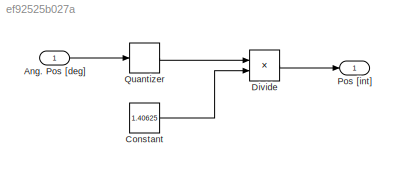
MODEL slx_ef92525b027a
KIND model
CONFIG AbsTol = auto
CONFIG FixedStep = auto
CONFIG MaxStep = auto
CONFIG MinStep = auto
CONFIG RelTol = 1e-3
CONFIG SampleTimeConstraint = Unconstrained
CONFIG Solver = ode45
CONFIG SolverMode = Auto
CONFIG SolverName = ode45
CONFIG StartTime = 0.0
CONFIG StopTime = 10.0
BLOCK [Inport] Ang. Pos [deg]
  IconDisplay = Port number
BLOCK [Constant] Constant
  Value = 1.40625
BLOCK [Product] Divide
  InputSameDT = off
  Inputs = */
  OutDataTypeStr = Inherit: Inherit via internal rule
  Ports = [2, 1]
  RndMeth = Floor
  SaturateOnIntegerOverflow = off
BLOCK [Outport] Pos [int]
  IconDisplay = Port number
BLOCK [Quantizer] Quantizer
  LinearizeAsGain = off
  QuantizationInterval = 1.40625
LINE Ang. Pos [deg]:1 -> Quantizer:1
LINE Constant:1 -> Divide:2
LINE Divide:1 -> Pos [int]:1
LINE Quantizer:1 -> Divide:1
